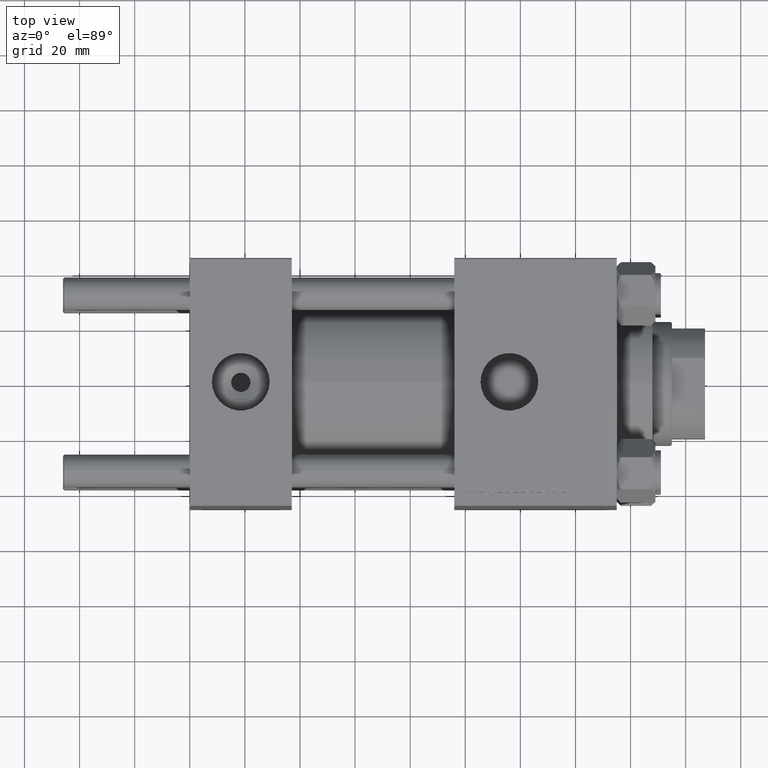
[diagram: clean part render]
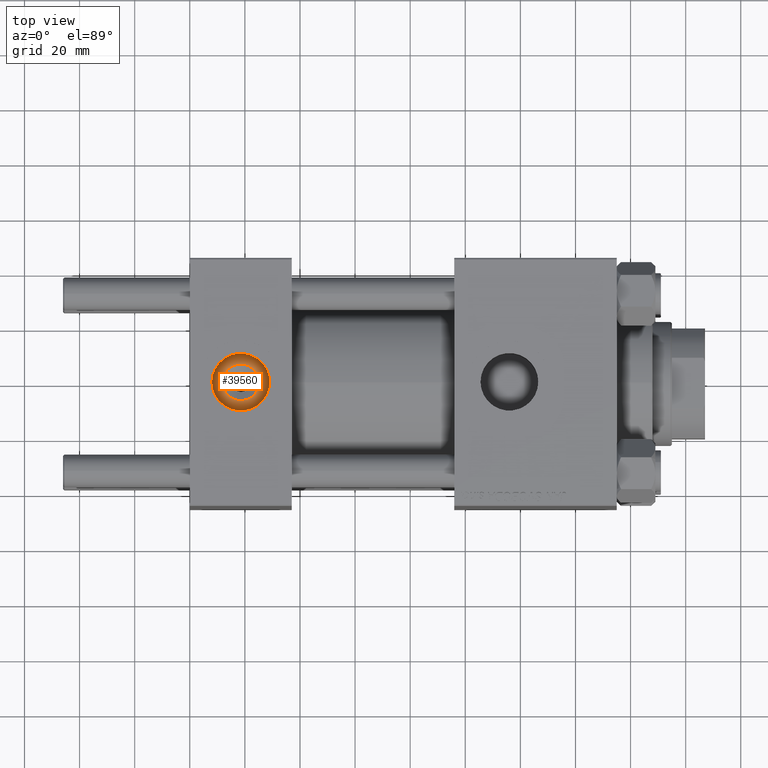
[diagram: same view with one face highlighted and labeled with its STEP entity id]
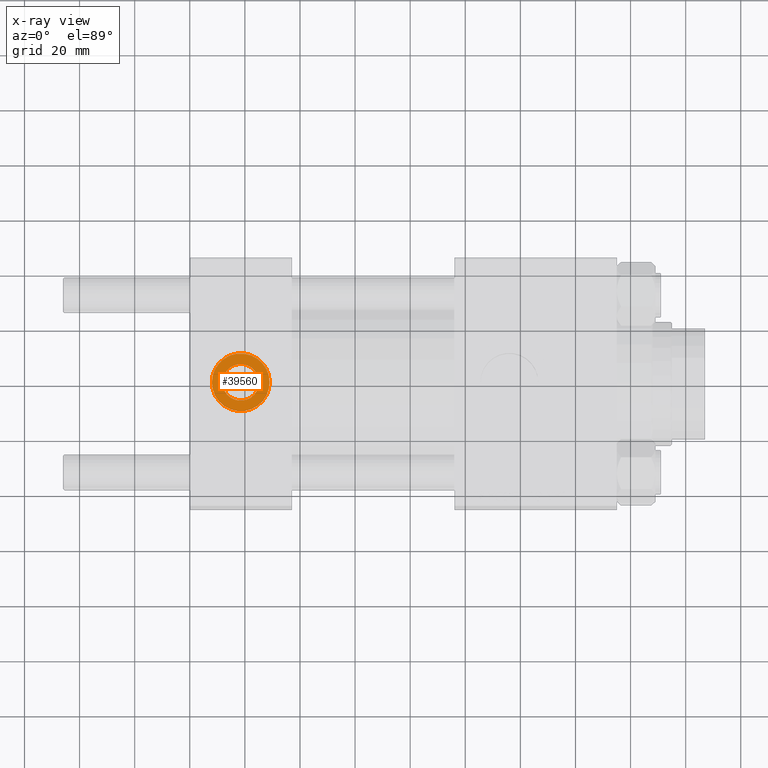
[diagram: x-ray of the same camera — body ghosted, the highlighted face saturated]
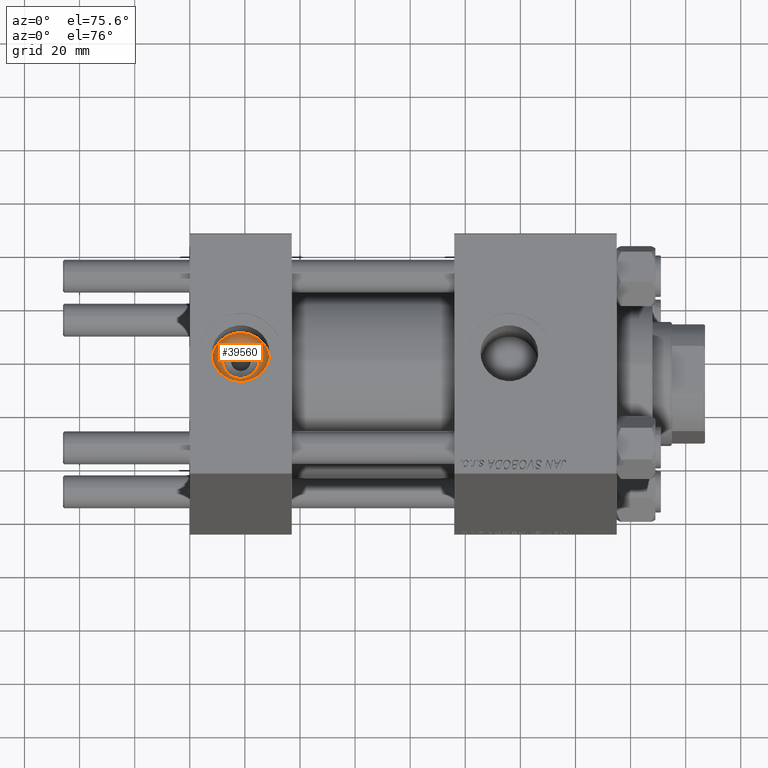
[diagram: same view with one face highlighted and labeled with its STEP entity id]
A machine part, top view. The second image highlights one B-rep face of the part: STEP entity #39560.
The next image is the same camera in x-ray: the body ghosted, the highlighted face saturated — about 0% of this face is hidden behind the body in this view.
A second angle (auxiliary view) of the same face is appended — the face is thin or edge-on in the first view.
In plain terms, the highlighted planar face has unit normal (0, 0, 1).
Its self-contained STEP definition (entity closure, byte-faithful):
#4068 = EDGE_CURVE ( 'NONE', #6777, #41600, #46890, .T. ) ;
#4732 = CARTESIAN_POINT ( 'NONE',  ( 18.50000000000000000, -8.673617379884038628E-15, 34.20000000000000995 ) ) ;
#4861 = DIRECTION ( 'NONE',  ( -0.000000000000000000, -0.000000000000000000, -1.000000000000000000 ) ) ;
#6777 = VERTEX_POINT ( 'NONE', #33310 ) ;
#8033 = PLANE ( 'NONE',  #24909 ) ;
#9132 = VERTEX_POINT ( 'NONE', #10362 ) ;
#10219 = CIRCLE ( 'NONE', #14245, 6.640000000000062741 ) ;
#10362 = CARTESIAN_POINT ( 'NONE',  ( 25.14000000000006096, -8.673617379884038628E-15, 34.20000000000000995 ) ) ;
#10946 = EDGE_LOOP ( 'NONE', ( #28744, #14123 ) ) ;
#11120 = ORIENTED_EDGE ( 'NONE', *, *, #35353, .T. ) ;
#12916 = EDGE_LOOP ( 'NONE', ( #47124, #11120 ) ) ;
#13197 = EDGE_CURVE ( 'NONE', #41600, #6777, #33359, .T. ) ;
#14123 = ORIENTED_EDGE ( 'NONE', *, *, #4068, .T. ) ;
#14245 = AXIS2_PLACEMENT_3D ( 'NONE', #39393, #4861, #28071 ) ;
#15919 = CARTESIAN_POINT ( 'NONE',  ( 28.98000000000000043, -8.673617379884038628E-15, 34.20000000000000995 ) ) ;
#16005 = DIRECTION ( 'NONE',  ( -0.000000000000000000, -0.000000000000000000, -1.000000000000000000 ) ) ;
#16055 = CARTESIAN_POINT ( 'NONE',  ( 18.50000000000000000, -8.673617379884038628E-15, 34.20000000000000995 ) ) ;
#18947 = CARTESIAN_POINT ( 'NONE',  ( 11.85999999999993726, -7.860451905250187841E-15, 34.20000000000000995 ) ) ;
#19601 = DIRECTION ( 'NONE',  ( 0.000000000000000000, 0.000000000000000000, 1.000000000000000000 ) ) ;
#23177 = FACE_BOUND ( 'NONE', #12916, .T. ) ;
#23553 = AXIS2_PLACEMENT_3D ( 'NONE', #16055, #36157, #47743 ) ;
#24909 = AXIS2_PLACEMENT_3D ( 'NONE', #4732, #46342, #42795 ) ;
#25662 = CIRCLE ( 'NONE', #40931, 6.640000000000062741 ) ;
#27445 = FACE_OUTER_BOUND ( 'NONE', #10946, .T. ) ;
#28071 = DIRECTION ( 'NONE',  ( 1.000000000000000000, 0.000000000000000000, 0.000000000000000000 ) ) ;
#28744 = ORIENTED_EDGE ( 'NONE', *, *, #13197, .T. ) ;
#30518 = EDGE_CURVE ( 'NONE', #9132, #48389, #10219, .T. ) ;
#31373 = DIRECTION ( 'NONE',  ( 1.000000000000000000, 0.000000000000000000, 0.000000000000000000 ) ) ;
#31614 = CARTESIAN_POINT ( 'NONE',  ( 18.50000000000000000, -8.673617379884038628E-15, 34.20000000000000995 ) ) ;
#33310 = CARTESIAN_POINT ( 'NONE',  ( 8.019999999999999574, -7.390187534377611561E-15, 34.20000000000000995 ) ) ;
#33359 = CIRCLE ( 'NONE', #49429, 10.48000000000000043 ) ;
#35353 = EDGE_CURVE ( 'NONE', #48389, #9132, #25662, .T. ) ;
#36157 = DIRECTION ( 'NONE',  ( 0.000000000000000000, 0.000000000000000000, 1.000000000000000000 ) ) ;
#38737 = CARTESIAN_POINT ( 'NONE',  ( 18.50000000000000000, -8.673617379884038628E-15, 34.20000000000000995 ) ) ;
#39393 = CARTESIAN_POINT ( 'NONE',  ( 18.50000000000000000, -8.673617379884038628E-15, 34.20000000000000995 ) ) ;
#39560 = ADVANCED_FACE ( 'NONE', ( #23177, #27445 ), #8033, .T. ) ;
#40931 = AXIS2_PLACEMENT_3D ( 'NONE', #31614, #16005, #31373 ) ;
#41600 = VERTEX_POINT ( 'NONE', #15919 ) ;
#42768 = DIRECTION ( 'NONE',  ( 1.000000000000000000, 0.000000000000000000, 0.000000000000000000 ) ) ;
#42795 = DIRECTION ( 'NONE',  ( 1.000000000000000000, 0.000000000000000000, -0.000000000000000000 ) ) ;
#46342 = DIRECTION ( 'NONE',  ( 0.000000000000000000, 0.000000000000000000, 1.000000000000000000 ) ) ;
#46890 = CIRCLE ( 'NONE', #23553, 10.48000000000000043 ) ;
#47124 = ORIENTED_EDGE ( 'NONE', *, *, #30518, .T. ) ;
#47743 = DIRECTION ( 'NONE',  ( 1.000000000000000000, 0.000000000000000000, 0.000000000000000000 ) ) ;
#48389 = VERTEX_POINT ( 'NONE', #18947 ) ;
#49429 = AXIS2_PLACEMENT_3D ( 'NONE', #38737, #19601, #42768 ) ;